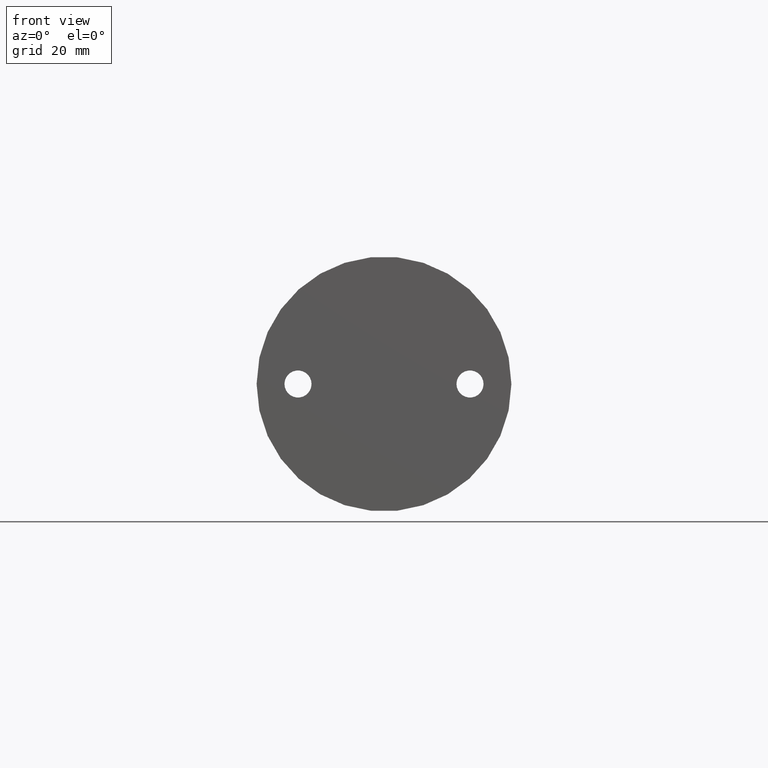
[diagram: clean part render]
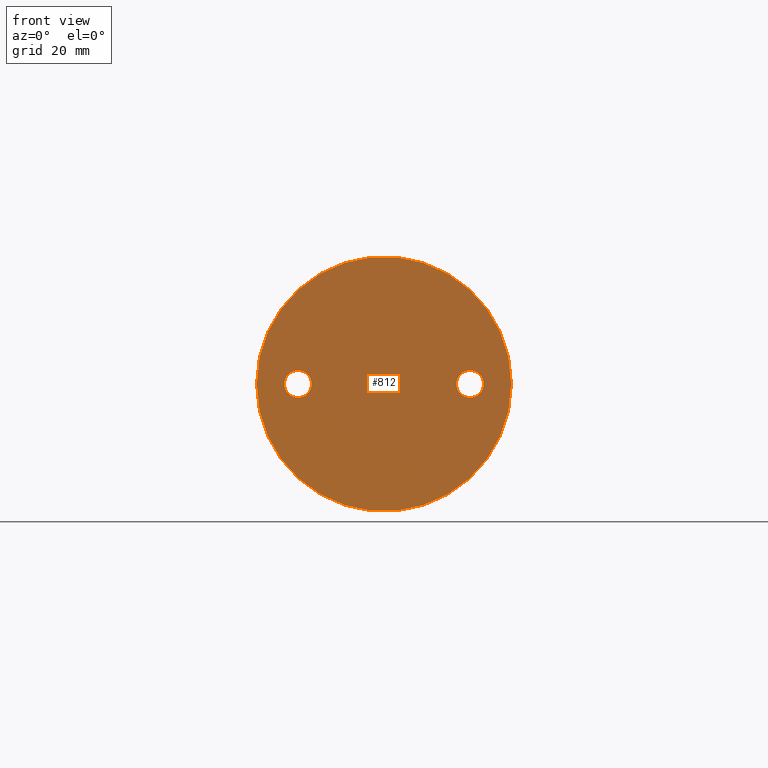
[diagram: same view with one face highlighted and labeled with its STEP entity id]
A machine part, front view. The second image highlights one B-rep face of the part: STEP entity #812.
In plain terms, the highlighted planar face has unit normal (0, -1, 0).
Its self-contained STEP definition (entity closure, byte-faithful):
#35=FACE_BOUND('',#202,.T.);
#36=FACE_BOUND('',#203,.T.);
#47=PLANE('',#973);
#152=FACE_OUTER_BOUND('',#201,.T.);
#201=EDGE_LOOP('',(#697));
#202=EDGE_LOOP('',(#698));
#203=EDGE_LOOP('',(#699));
#276=CIRCLE('',#906,40.);
#305=CIRCLE('',#948,4.25);
#307=CIRCLE('',#951,4.25);
#324=VERTEX_POINT('',#1230);
#367=VERTEX_POINT('',#1500);
#369=VERTEX_POINT('',#1506);
#407=EDGE_CURVE('',#324,#324,#276,.T.);
#462=EDGE_CURVE('',#367,#367,#305,.T.);
#465=EDGE_CURVE('',#369,#369,#307,.T.);
#697=ORIENTED_EDGE('',*,*,#407,.T.);
#698=ORIENTED_EDGE('',*,*,#462,.T.);
#699=ORIENTED_EDGE('',*,*,#465,.T.);
#812=ADVANCED_FACE('',(#152,#35,#36),#47,.T.);
#906=AXIS2_PLACEMENT_3D('',#1231,#1008,#1009);
#948=AXIS2_PLACEMENT_3D('',#1502,#1098,#1099);
#951=AXIS2_PLACEMENT_3D('',#1508,#1105,#1106);
#973=AXIS2_PLACEMENT_3D('',#1599,#1158,#1159);
#1008=DIRECTION('center_axis',(0.,-1.,0.));
#1009=DIRECTION('ref_axis',(-1.,0.,0.));
#1098=DIRECTION('center_axis',(0.,1.,0.));
#1099=DIRECTION('ref_axis',(1.,0.,0.));
#1105=DIRECTION('center_axis',(0.,1.,0.));
#1106=DIRECTION('ref_axis',(1.,0.,0.));
#1158=DIRECTION('center_axis',(0.,-1.,0.));
#1159=DIRECTION('ref_axis',(0.,0.,-1.));
#1230=CARTESIAN_POINT('',(40.,0.,4.89842541528951E-15));
#1231=CARTESIAN_POINT('Origin',(0.,0.,0.));
#1500=CARTESIAN_POINT('',(-31.25,0.,5.20457700374478E-16));
#1502=CARTESIAN_POINT('Origin',(-27.,0.,0.));
#1506=CARTESIAN_POINT('',(22.75,0.,5.20457700374478E-16));
#1508=CARTESIAN_POINT('Origin',(27.,0.,0.));
#1599=CARTESIAN_POINT('Origin',(-20.,0.,-4.89842541528951E-15));